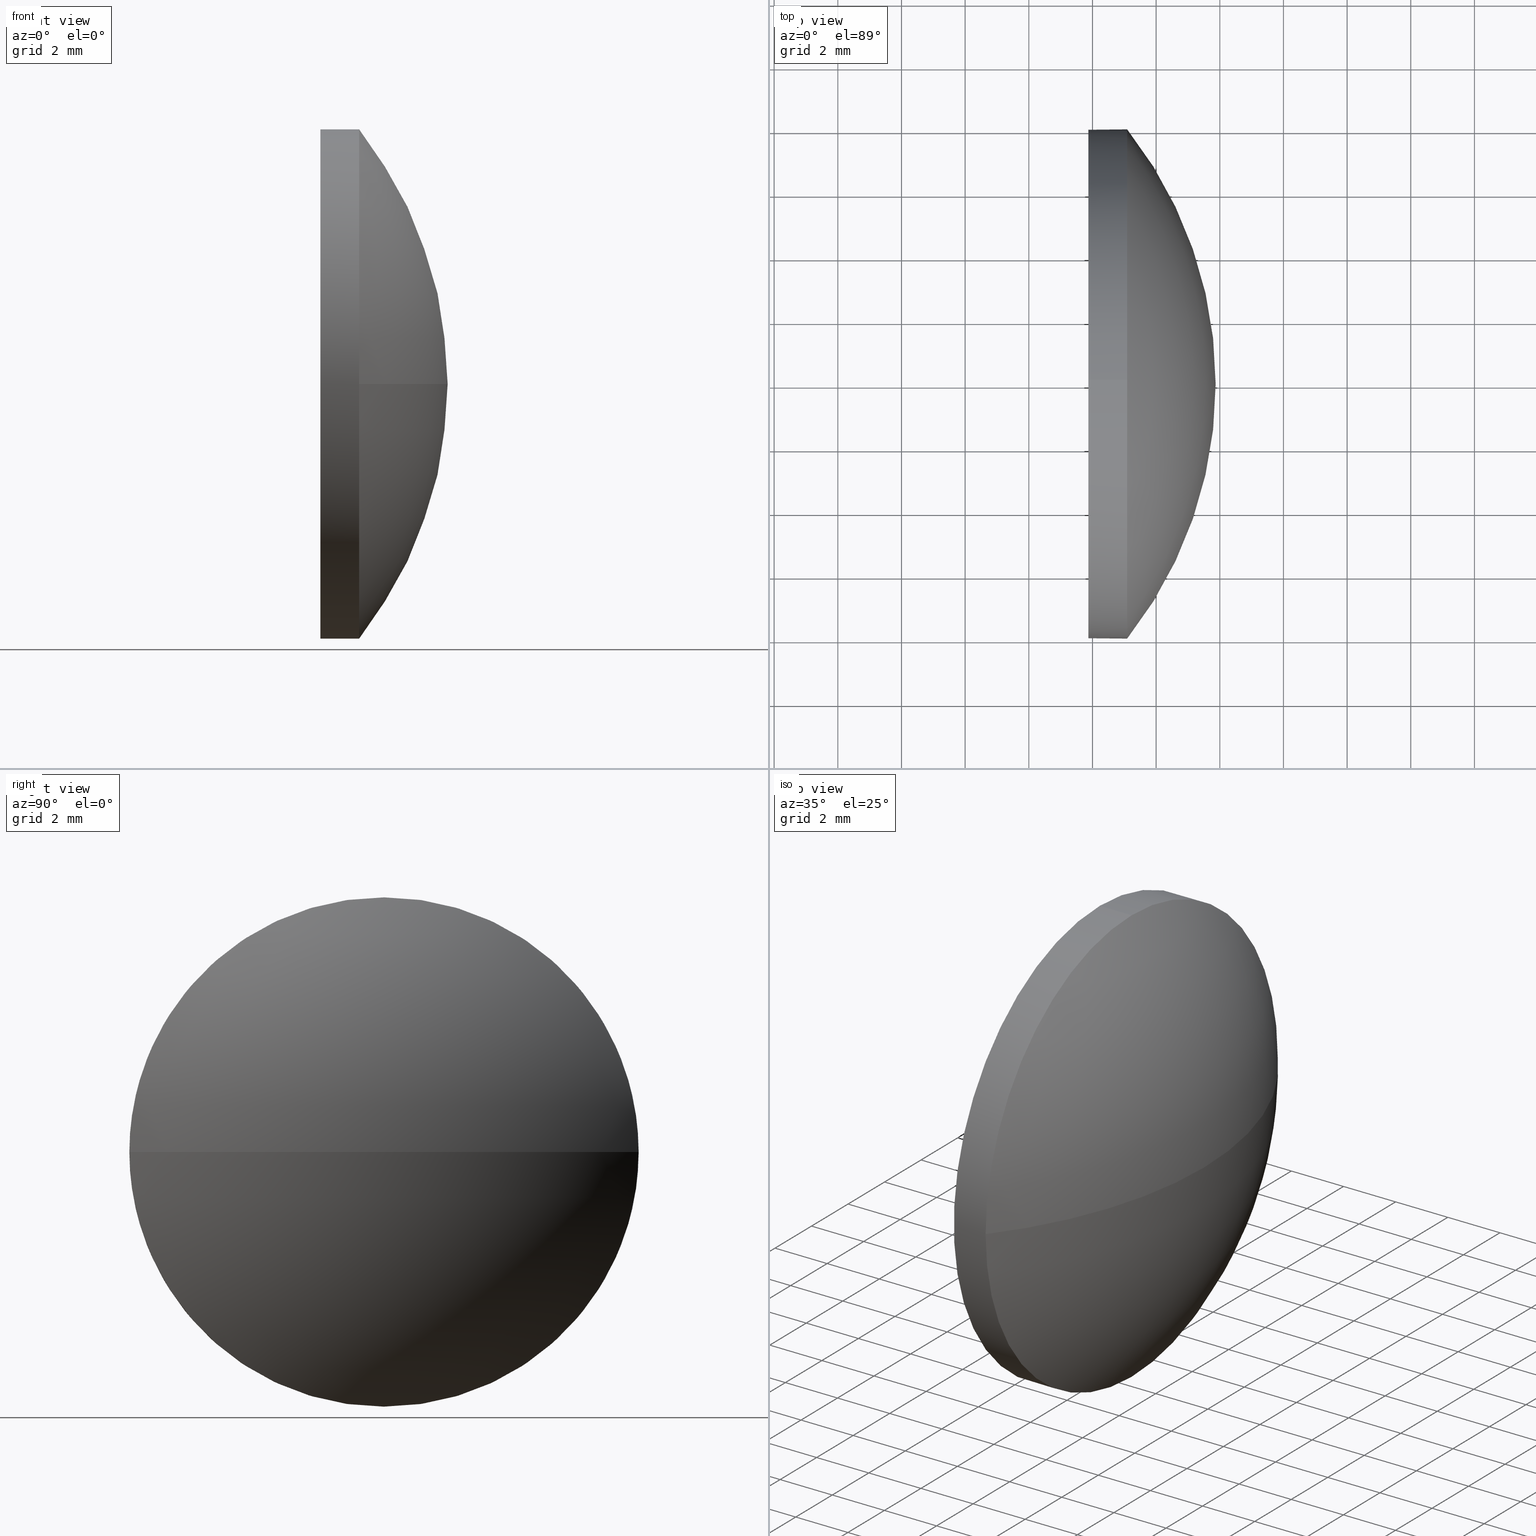
[diagram: canonical four-view strip — front | top / right | iso, engineering-drawing reading convention]
A machine part, canonical four-view strip (front | top / right | iso — engineering-drawing reading convention). The complete STEP part file that produces these views, byte-faithful:
ISO-10303-21;
HEADER;
FILE_DESCRIPTION (( 'STEP AP214' ),
    '1' );
FILE_NAME ('100026.STEP',
    '2019-04-22T07:51:19',
    ( '' ),
    ( '' ),
    'SwSTEP 2.0',
    'SolidWorks 2016',
    '' );
FILE_SCHEMA (( 'AUTOMOTIVE_DESIGN' ));
ENDSEC;

DATA;
#1 = CARTESIAN_POINT ( 'NONE',  ( 527.2437330882992200, 139.9861653284031000, 0.0000000000000000000 ) ) ;
#2 = ORIENTED_EDGE ( 'NONE', *, *, #96, .T. ) ;
#3 = DIRECTION ( 'NONE',  ( -1.000000000000000000, -0.0000000000000000000, -0.0000000000000000000 ) ) ;
#4 = ADVANCED_FACE ( 'NONE', ( #39 ), #73, .F. ) ;
#5 = SURFACE_SIDE_STYLE ('',( #80 ) ) ;
#6 = APPLICATION_PROTOCOL_DEFINITION ( 'draft international standard', 'automotive_design', 1998, #181 ) ;
#7 = CARTESIAN_POINT ( 'NONE',  ( 547.0900761901107200, 147.9861653284031000, 0.0000000000000000000 ) ) ;
#8 = PRESENTATION_STYLE_ASSIGNMENT (( #116 ) ) ;
#9 = DIRECTION ( 'NONE',  ( 0.0000000000000000000, 0.0000000000000000000, 1.000000000000000000 ) ) ;
#10 = ORIENTED_EDGE ( 'NONE', *, *, #61, .F. ) ;
#11 = ORIENTED_EDGE ( 'NONE', *, *, #96, .F. ) ;
#12 = VECTOR ( 'NONE', #72, 1000.000000000000000 ) ;
#13 = STYLED_ITEM ( 'NONE', ( #182 ), #127 ) ;
#14 =( GEOMETRIC_REPRESENTATION_CONTEXT ( 3 ) GLOBAL_UNCERTAINTY_ASSIGNED_CONTEXT ( ( #136 ) ) GLOBAL_UNIT_ASSIGNED_CONTEXT ( ( #180, #135, #23 ) ) REPRESENTATION_CONTEXT ( 'NONE', 'WORKASPACE' ) );
#15 = ORIENTED_EDGE ( 'NONE', *, *, #43, .T. ) ;
#16 = CARTESIAN_POINT ( 'NONE',  ( 549.8700761901106900, 139.9861653284031300, 0.0000000000000000000 ) ) ;
#17 = PRODUCT_DEFINITION ( 'δ֪', '', #66, #53 ) ;
#18 = VECTOR ( 'NONE', #58, 1000.000000000000000 ) ;
#19 = AXIS2_PLACEMENT_3D ( 'NONE', #46, #89, #9 ) ;
#20 = FACE_OUTER_BOUND ( 'NONE', #165, .T. ) ;
#21 = ORIENTED_EDGE ( 'NONE', *, *, #61, .T. ) ;
#22 = DIRECTION ( 'NONE',  ( 0.0000000000000000000, 0.0000000000000000000, 1.000000000000000000 ) ) ;
#23 =( NAMED_UNIT ( * ) SI_UNIT ( $, .STERADIAN. ) SOLID_ANGLE_UNIT ( ) );
#24 = CIRCLE ( 'NONE', #62, 8.000000000000007100 ) ;
#25 = SHAPE_DEFINITION_REPRESENTATION ( #28, #127 ) ;
#26 = VERTEX_POINT ( 'NONE', #113 ) ;
#27 = AXIS2_PLACEMENT_3D ( 'NONE', #163, #47, #104 ) ;
#28 = PRODUCT_DEFINITION_SHAPE ( 'NONE', 'NONE',  #17 ) ;
#29 = ORIENTED_EDGE ( 'NONE', *, *, #184, .T. ) ;
#30 = AXIS2_PLACEMENT_3D ( 'NONE', #44, #71, #142 ) ;
#31 = CLOSED_SHELL ( 'NONE', ( #111, #175, #33, #86, #4 ) ) ;
#32 = DIRECTION ( 'NONE',  ( 1.000000000000000000, 0.0000000000000000000, 0.0000000000000000000 ) ) ;
#33 = ADVANCED_FACE ( 'NONE', ( #119 ), #77, .T. ) ;
#34 = DIRECTION ( 'NONE',  ( -1.000000000000000000, -0.0000000000000000000, -0.0000000000000000000 ) ) ;
#35 =( NAMED_UNIT ( * ) SI_UNIT ( $, .STERADIAN. ) SOLID_ANGLE_UNIT ( ) );
#36 = ORIENTED_EDGE ( 'NONE', *, *, #122, .F. ) ;
#37 = UNCERTAINTY_MEASURE_WITH_UNIT (LENGTH_MEASURE( 1.000000000000000100E-005 ), #131, 'distance_accuracy_value', 'NONE');
#38 = EDGE_CURVE ( 'NONE', #90, #137, #41, .T. ) ;
#39 = FACE_OUTER_BOUND ( 'NONE', #126, .T. ) ;
#40 = AXIS2_PLACEMENT_3D ( 'NONE', #105, #34, #22 ) ;
#41 = CIRCLE ( 'NONE', #82, 12.90079136690647100 ) ;
#42 = PRESENTATION_LAYER_ASSIGNMENT (  '', '', ( #13 ) ) ;
#43 = EDGE_CURVE ( 'NONE', #90, #26, #186, .T. ) ;
#44 = CARTESIAN_POINT ( 'NONE',  ( 545.8700761901106900, 139.9861653284031000, 0.0000000000000000000 ) ) ;
#45 = DIRECTION ( 'NONE',  ( -1.000000000000000000, -0.0000000000000000000, -0.0000000000000000000 ) ) ;
#46 = CARTESIAN_POINT ( 'NONE',  ( 547.0900761901107200, 139.9861653284031000, 0.0000000000000000000 ) ) ;
#47 = DIRECTION ( 'NONE',  ( -1.000000000000000000, -0.0000000000000000000, -0.0000000000000000000 ) ) ;
#48 = CARTESIAN_POINT ( 'NONE',  ( 547.0900761901107200, 139.9861653284031000, 0.0000000000000000000 ) ) ;
#49 = CARTESIAN_POINT ( 'NONE',  ( 0.0000000000000000000, 0.0000000000000000000, 0.0000000000000000000 ) ) ;
#50 = COLOUR_RGB ( '',1.000000000000000000, 1.000000000000000000, 1.000000000000000000 ) ;
#51 =( NAMED_UNIT ( * ) PLANE_ANGLE_UNIT ( ) SI_UNIT ( $, .RADIAN. ) );
#52 = ORIENTED_EDGE ( 'NONE', *, *, #68, .T. ) ;
#53 = PRODUCT_DEFINITION_CONTEXT ( 'detailed design', #146, 'design' ) ;
#54 = CIRCLE ( 'NONE', #19, 8.000000000000007100 ) ;
#55 = ORIENTED_EDGE ( 'NONE', *, *, #152, .F. ) ;
#56 = DIRECTION ( 'NONE',  ( 0.0000000000000000000, 1.000000000000000000, 0.0000000000000000000 ) ) ;
#57 = CARTESIAN_POINT ( 'NONE',  ( 527.2437330882992200, 139.9861653284031000, 8.000000000000007100 ) ) ;
#58 = DIRECTION ( 'NONE',  ( -1.000000000000000000, -0.0000000000000000000, -0.0000000000000000000 ) ) ;
#59 = DIRECTION ( 'NONE',  ( -0.0000000000000000000, 0.0000000000000000000, -1.000000000000000000 ) ) ;
#60 =( NAMED_UNIT ( * ) PLANE_ANGLE_UNIT ( ) SI_UNIT ( $, .RADIAN. ) );
#61 = EDGE_CURVE ( 'NONE', #70, #124, #143, .T. ) ;
#62 = AXIS2_PLACEMENT_3D ( 'NONE', #48, #166, #117 ) ;
#63 = DIRECTION ( 'NONE',  ( 1.000000000000000000, 0.0000000000000000000, 0.0000000000000000000 ) ) ;
#64 = PRODUCT ( '100026', '100026', '', ( #76 ) ) ;
#65 = ORIENTED_EDGE ( 'NONE', *, *, #38, .F. ) ;
#66 = PRODUCT_DEFINITION_FORMATION_WITH_SPECIFIED_SOURCE ( '�κ�', '', #64, .NOT_KNOWN. ) ;
#67 = SURFACE_STYLE_FILL_AREA ( #102 ) ;
#68 = EDGE_CURVE ( 'NONE', #151, #93, #156, .T. ) ;
#69 = ORIENTED_EDGE ( 'NONE', *, *, #38, .T. ) ;
#70 = VERTEX_POINT ( 'NONE', #109 ) ;
#71 = DIRECTION ( 'NONE',  ( 1.000000000000000000, 0.0000000000000000000, 0.0000000000000000000 ) ) ;
#72 = DIRECTION ( 'NONE',  ( -1.000000000000000000, -0.0000000000000000000, -0.0000000000000000000 ) ) ;
#73 = PLANE ( 'NONE',  #30 ) ;
#74 = DIRECTION ( 'NONE',  ( 0.0000000000000000000, 0.0000000000000000000, 1.000000000000000000 ) ) ;
#75 = CARTESIAN_POINT ( 'NONE',  ( 547.0900761901107200, 139.9861653284031000, 8.000000000000007100 ) ) ;
#76 = PRODUCT_CONTEXT ( 'NONE', #181, 'mechanical' ) ;
#77 = SPHERICAL_SURFACE ( 'NONE', #162, 12.90079136690646600 ) ;
#78 = SPHERICAL_SURFACE ( 'NONE', #141, 12.90079136690646600 ) ;
#79 = EDGE_LOOP ( 'NONE', ( #65, #15, #150, #11 ) ) ;
#80 = SURFACE_STYLE_FILL_AREA ( #91 ) ;
#81 = FACE_OUTER_BOUND ( 'NONE', #79, .T. ) ;
#82 = AXIS2_PLACEMENT_3D ( 'NONE', #112, #88, #32 ) ;
#83 = CYLINDRICAL_SURFACE ( 'NONE', #185, 8.000000000000007100 ) ;
#84 = ORIENTED_EDGE ( 'NONE', *, *, #152, .T. ) ;
#85 = DIRECTION ( 'NONE',  ( 0.0000000000000000000, 1.224646799147353200E-016, -1.000000000000000000 ) ) ;
#86 = ADVANCED_FACE ( 'NONE', ( #20 ), #94, .T. ) ;
#87 = DIRECTION ( 'NONE',  ( 0.0000000000000000000, 0.0000000000000000000, 1.000000000000000000 ) ) ;
#88 = DIRECTION ( 'NONE',  ( -0.0000000000000000000, 0.0000000000000000000, 1.000000000000000000 ) ) ;
#89 = DIRECTION ( 'NONE',  ( -1.000000000000000000, -0.0000000000000000000, -0.0000000000000000000 ) ) ;
#90 = VERTEX_POINT ( 'NONE', #16 ) ;
#91 = FILL_AREA_STYLE ('',( #149 ) ) ;
#92 = EDGE_CURVE ( 'NONE', #70, #26, #167, .T. ) ;
#93 = VERTEX_POINT ( 'NONE', #128 ) ;
#94 = CYLINDRICAL_SURFACE ( 'NONE', #107, 8.000000000000007100 ) ;
#95 = CARTESIAN_POINT ( 'NONE',  ( 536.9692848232042500, 139.9861653284031300, 0.0000000000000000000 ) ) ;
#96 = EDGE_CURVE ( 'NONE', #137, #70, #140, .T. ) ;
#97 = DIRECTION ( 'NONE',  ( -1.000000000000000000, -0.0000000000000000000, -0.0000000000000000000 ) ) ;
#98 = CARTESIAN_POINT ( 'NONE',  ( 547.0900761901107200, 139.9861653284031000, 0.0000000000000000000 ) ) ;
#99 = AXIS2_PLACEMENT_3D ( 'NONE', #49, #74, #63 ) ;
#100 =( LENGTH_UNIT ( ) NAMED_UNIT ( * ) SI_UNIT ( .MILLI., .METRE. ) );
#101 = COLOUR_RGB ( '',1.000000000000000000, 1.000000000000000000, 1.000000000000000000 ) ;
#102 = FILL_AREA_STYLE ('',( #133 ) ) ;
#103 = PRESENTATION_LAYER_ASSIGNMENT (  '', '', ( #108 ) ) ;
#104 = DIRECTION ( 'NONE',  ( 0.0000000000000000000, 0.0000000000000000000, 1.000000000000000000 ) ) ;
#105 = CARTESIAN_POINT ( 'NONE',  ( 545.8700761901106900, 139.9861653284031000, 0.0000000000000000000 ) ) ;
#106 = DIRECTION ( 'NONE',  ( 0.0000000000000000000, 1.000000000000000000, 0.0000000000000000000 ) ) ;
#107 = AXIS2_PLACEMENT_3D ( 'NONE', #1, #97, #129 ) ;
#108 = STYLED_ITEM ( 'NONE', ( #8 ), #164 ) ;
#109 = CARTESIAN_POINT ( 'NONE',  ( 547.0900761901107200, 139.9861653284031000, -8.000000000000007100 ) ) ;
#110 = ORIENTED_EDGE ( 'NONE', *, *, #139, .T. ) ;
#111 = ADVANCED_FACE ( 'NONE', ( #118 ), #83, .T. ) ;
#112 = CARTESIAN_POINT ( 'NONE',  ( 536.9692848232042500, 139.9861653284031300, 0.0000000000000000000 ) ) ;
#113 = CARTESIAN_POINT ( 'NONE',  ( 547.0900761901107200, 131.9861653284031300, -9.797174393178839500E-016 ) ) ;
#114 = UNCERTAINTY_MEASURE_WITH_UNIT (LENGTH_MEASURE( 1.000000000000000100E-005 ), #100, 'distance_accuracy_value', 'NONE');
#115 = ORIENTED_EDGE ( 'NONE', *, *, #92, .T. ) ;
#116 = SURFACE_STYLE_USAGE ( .BOTH. , #5 ) ;
#117 = DIRECTION ( 'NONE',  ( 0.0000000000000000000, 0.0000000000000000000, 1.000000000000000000 ) ) ;
#118 = FACE_OUTER_BOUND ( 'NONE', #155, .T. ) ;
#119 = FACE_OUTER_BOUND ( 'NONE', #138, .T. ) ;
#120 = AXIS2_PLACEMENT_3D ( 'NONE', #98, #45, #159 ) ;
#121 =( GEOMETRIC_REPRESENTATION_CONTEXT ( 3 ) GLOBAL_UNCERTAINTY_ASSIGNED_CONTEXT ( ( #114 ) ) GLOBAL_UNIT_ASSIGNED_CONTEXT ( ( #100, #60, #35 ) ) REPRESENTATION_CONTEXT ( 'NONE', 'WORKASPACE' ) );
#122 = EDGE_CURVE ( 'NONE', #124, #93, #125, .T. ) ;
#123 = MECHANICAL_DESIGN_GEOMETRIC_PRESENTATION_REPRESENTATION (  '', ( #108 ), #14 ) ;
#124 = VERTEX_POINT ( 'NONE', #157 ) ;
#125 = CIRCLE ( 'NONE', #40, 8.000000000000007100 ) ;
#126 = EDGE_LOOP ( 'NONE', ( #29, #134 ) ) ;
#127 = ADVANCED_BREP_SHAPE_REPRESENTATION ( '100026', ( #164, #99 ), #132 ) ;
#128 = CARTESIAN_POINT ( 'NONE',  ( 545.8700761901106900, 139.9861653284031000, 8.000000000000007100 ) ) ;
#129 = DIRECTION ( 'NONE',  ( 0.0000000000000000000, 0.0000000000000000000, 1.000000000000000000 ) ) ;
#130 = SURFACE_STYLE_USAGE ( .BOTH. , #161 ) ;
#131 =( LENGTH_UNIT ( ) NAMED_UNIT ( * ) SI_UNIT ( .MILLI., .METRE. ) );
#132 =( GEOMETRIC_REPRESENTATION_CONTEXT ( 3 ) GLOBAL_UNCERTAINTY_ASSIGNED_CONTEXT ( ( #37 ) ) GLOBAL_UNIT_ASSIGNED_CONTEXT ( ( #131, #51, #147 ) ) REPRESENTATION_CONTEXT ( 'NONE', 'WORKASPACE' ) );
#133 = FILL_AREA_STYLE_COLOUR ( '', #101 ) ;
#134 = ORIENTED_EDGE ( 'NONE', *, *, #122, .T. ) ;
#135 =( NAMED_UNIT ( * ) PLANE_ANGLE_UNIT ( ) SI_UNIT ( $, .RADIAN. ) );
#136 = UNCERTAINTY_MEASURE_WITH_UNIT (LENGTH_MEASURE( 1.000000000000000100E-005 ), #180, 'distance_accuracy_value', 'NONE');
#137 = VERTEX_POINT ( 'NONE', #7 ) ;
#138 = EDGE_LOOP ( 'NONE', ( #168, #69, #55, #170 ) ) ;
#139 = EDGE_CURVE ( 'NONE', #26, #151, #54, .T. ) ;
#140 = CIRCLE ( 'NONE', #120, 8.000000000000007100 ) ;
#141 = AXIS2_PLACEMENT_3D ( 'NONE', #178, #59, #106 ) ;
#142 = DIRECTION ( 'NONE',  ( 0.0000000000000000000, 0.0000000000000000000, -1.000000000000000000 ) ) ;
#143 = LINE ( 'NONE', #172, #12 ) ;
#144 = CARTESIAN_POINT ( 'NONE',  ( 527.2437330882992200, 139.9861653284031000, 0.0000000000000000000 ) ) ;
#145 = CARTESIAN_POINT ( 'NONE',  ( 536.9692848232042500, 139.9861653284031300, 0.0000000000000000000 ) ) ;
#146 = APPLICATION_CONTEXT ( 'automotive_design' ) ;
#147 =( NAMED_UNIT ( * ) SI_UNIT ( $, .STERADIAN. ) SOLID_ANGLE_UNIT ( ) );
#148 = ORIENTED_EDGE ( 'NONE', *, *, #68, .F. ) ;
#149 = FILL_AREA_STYLE_COLOUR ( '', #50 ) ;
#150 = ORIENTED_EDGE ( 'NONE', *, *, #92, .F. ) ;
#151 = VERTEX_POINT ( 'NONE', #75 ) ;
#152 = EDGE_CURVE ( 'NONE', #151, #137, #24, .T. ) ;
#153 = AXIS2_PLACEMENT_3D ( 'NONE', #177, #3, #158 ) ;
#154 = CIRCLE ( 'NONE', #27, 8.000000000000007100 ) ;
#155 = EDGE_LOOP ( 'NONE', ( #2, #21, #179, #148, #84 ) ) ;
#156 = LINE ( 'NONE', #57, #18 ) ;
#157 = CARTESIAN_POINT ( 'NONE',  ( 545.8700761901106900, 139.9861653284031000, -8.000000000000007100 ) ) ;
#158 = DIRECTION ( 'NONE',  ( 0.0000000000000000000, 0.0000000000000000000, 1.000000000000000000 ) ) ;
#159 = DIRECTION ( 'NONE',  ( 0.0000000000000000000, 0.0000000000000000000, 1.000000000000000000 ) ) ;
#160 = APPLICATION_PROTOCOL_DEFINITION ( 'draft international standard', 'automotive_design', 1998, #146 ) ;
#161 = SURFACE_SIDE_STYLE ('',( #67 ) ) ;
#162 = AXIS2_PLACEMENT_3D ( 'NONE', #145, #173, #56 ) ;
#163 = CARTESIAN_POINT ( 'NONE',  ( 545.8700761901106900, 139.9861653284031000, 0.0000000000000000000 ) ) ;
#164 = MANIFOLD_SOLID_BREP ( '��ת1', #31 ) ;
#165 = EDGE_LOOP ( 'NONE', ( #10, #115, #110, #52, #36 ) ) ;
#166 = DIRECTION ( 'NONE',  ( -1.000000000000000000, -0.0000000000000000000, -0.0000000000000000000 ) ) ;
#167 = CIRCLE ( 'NONE', #153, 8.000000000000007100 ) ;
#168 = ORIENTED_EDGE ( 'NONE', *, *, #43, .F. ) ;
#169 = MECHANICAL_DESIGN_GEOMETRIC_PRESENTATION_REPRESENTATION (  '', ( #13 ), #121 ) ;
#170 = ORIENTED_EDGE ( 'NONE', *, *, #139, .F. ) ;
#171 = AXIS2_PLACEMENT_3D ( 'NONE', #95, #85, #174 ) ;
#172 = CARTESIAN_POINT ( 'NONE',  ( 527.2437330882992200, 139.9861653284031000, -8.000000000000007100 ) ) ;
#173 = DIRECTION ( 'NONE',  ( -0.0000000000000000000, 0.0000000000000000000, -1.000000000000000000 ) ) ;
#174 = DIRECTION ( 'NONE',  ( 0.0000000000000000000, 1.000000000000000000, 1.224646799147352700E-016 ) ) ;
#175 = ADVANCED_FACE ( 'NONE', ( #81 ), #78, .T. ) ;
#176 = DIRECTION ( 'NONE',  ( -1.000000000000000000, -0.0000000000000000000, -0.0000000000000000000 ) ) ;
#177 = CARTESIAN_POINT ( 'NONE',  ( 547.0900761901107200, 139.9861653284031000, 0.0000000000000000000 ) ) ;
#178 = CARTESIAN_POINT ( 'NONE',  ( 536.9692848232042500, 139.9861653284031300, 0.0000000000000000000 ) ) ;
#179 = ORIENTED_EDGE ( 'NONE', *, *, #184, .F. ) ;
#180 =( LENGTH_UNIT ( ) NAMED_UNIT ( * ) SI_UNIT ( .MILLI., .METRE. ) );
#181 = APPLICATION_CONTEXT ( 'automotive_design' ) ;
#182 = PRESENTATION_STYLE_ASSIGNMENT (( #130 ) ) ;
#183 = PRODUCT_RELATED_PRODUCT_CATEGORY ( 'part', '', ( #64 ) ) ;
#184 = EDGE_CURVE ( 'NONE', #93, #124, #154, .T. ) ;
#185 = AXIS2_PLACEMENT_3D ( 'NONE', #144, #176, #87 ) ;
#186 = CIRCLE ( 'NONE', #171, 12.90079136690647100 ) ;
ENDSEC;
END-ISO-10303-21;
